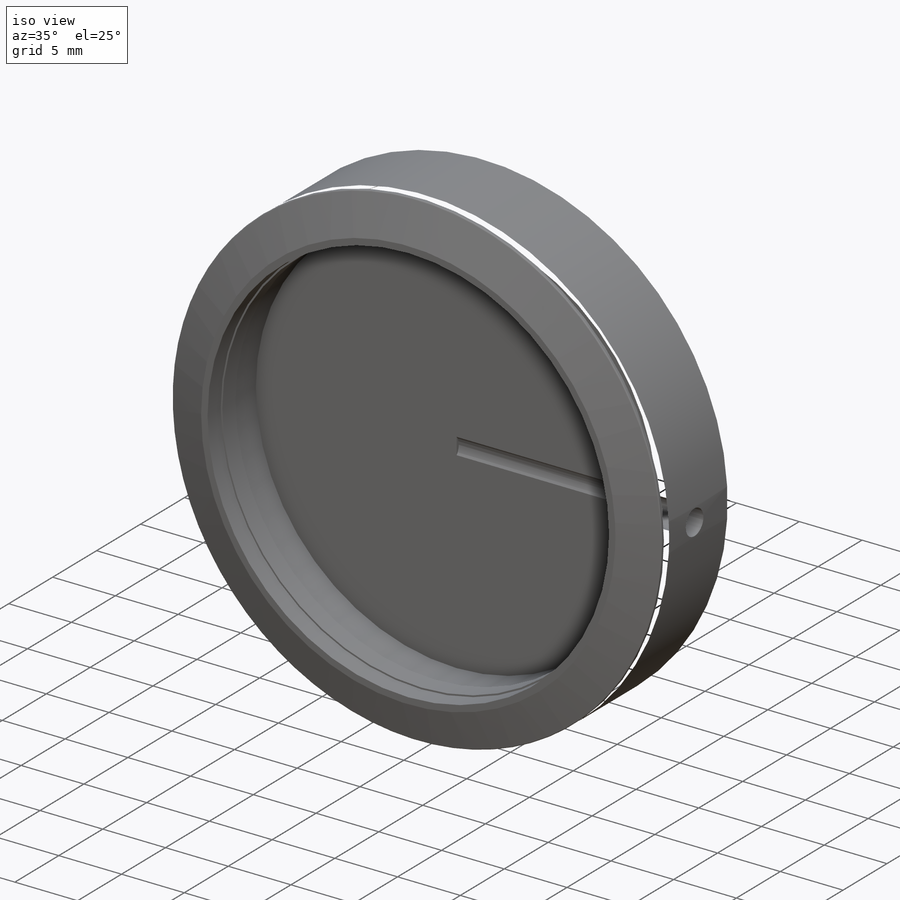
[diagram: iso view]
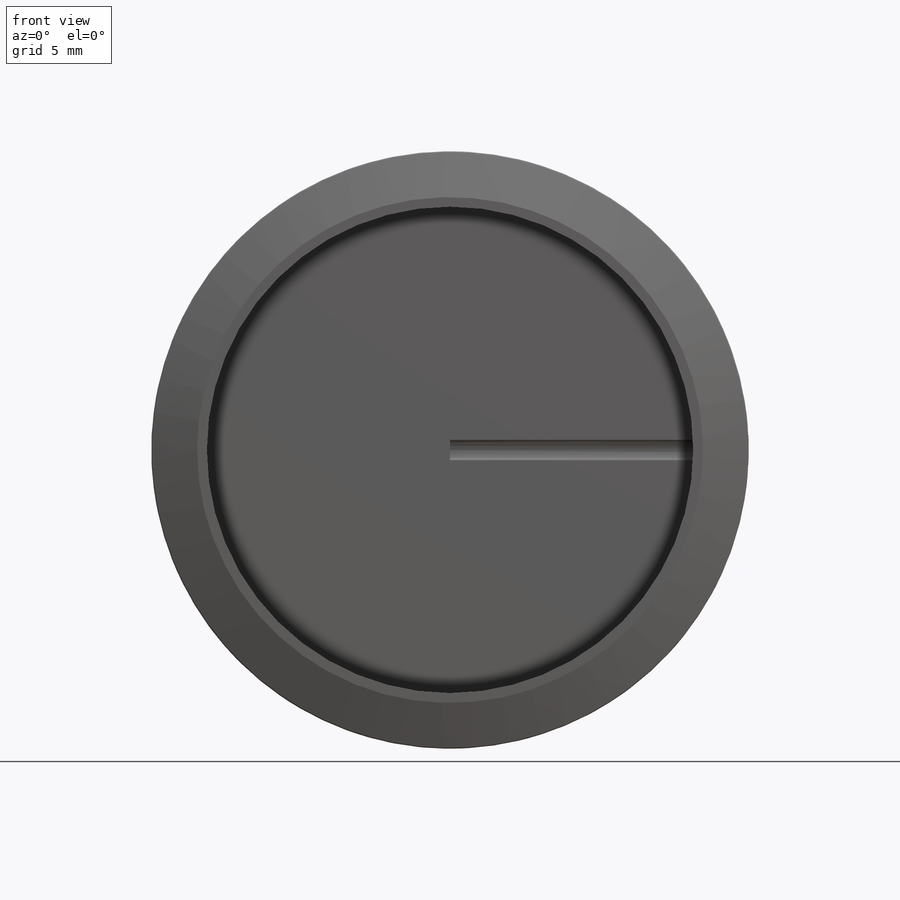
[diagram: front view]
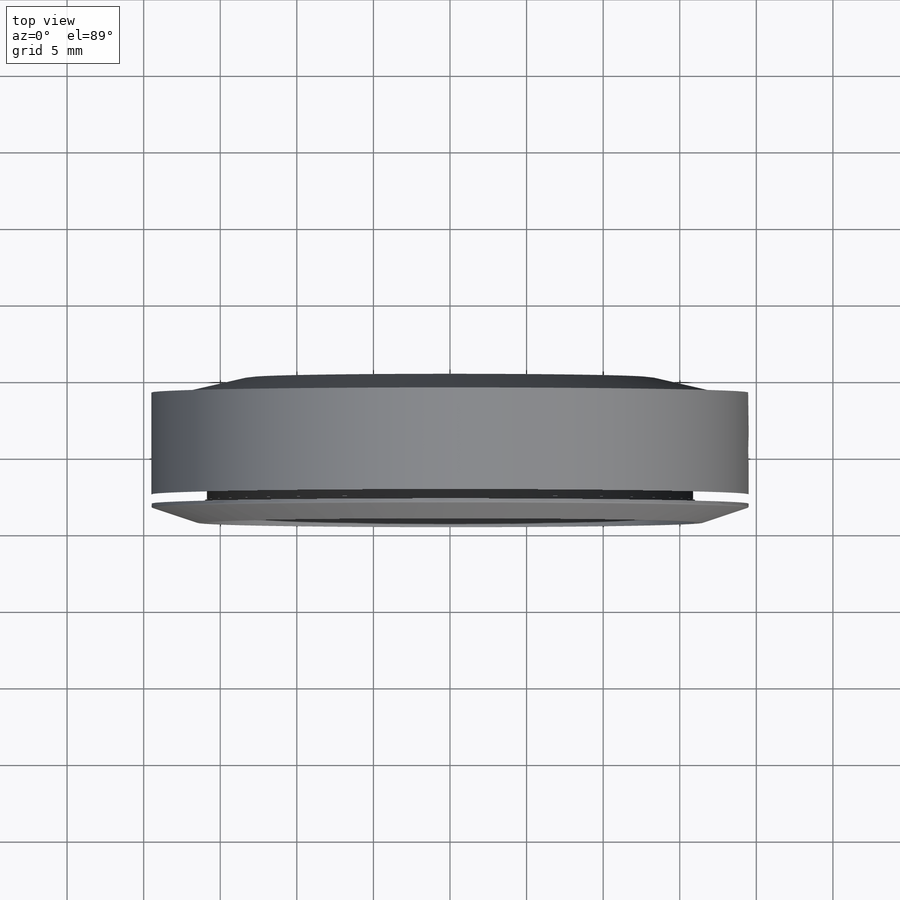
[diagram: top view]
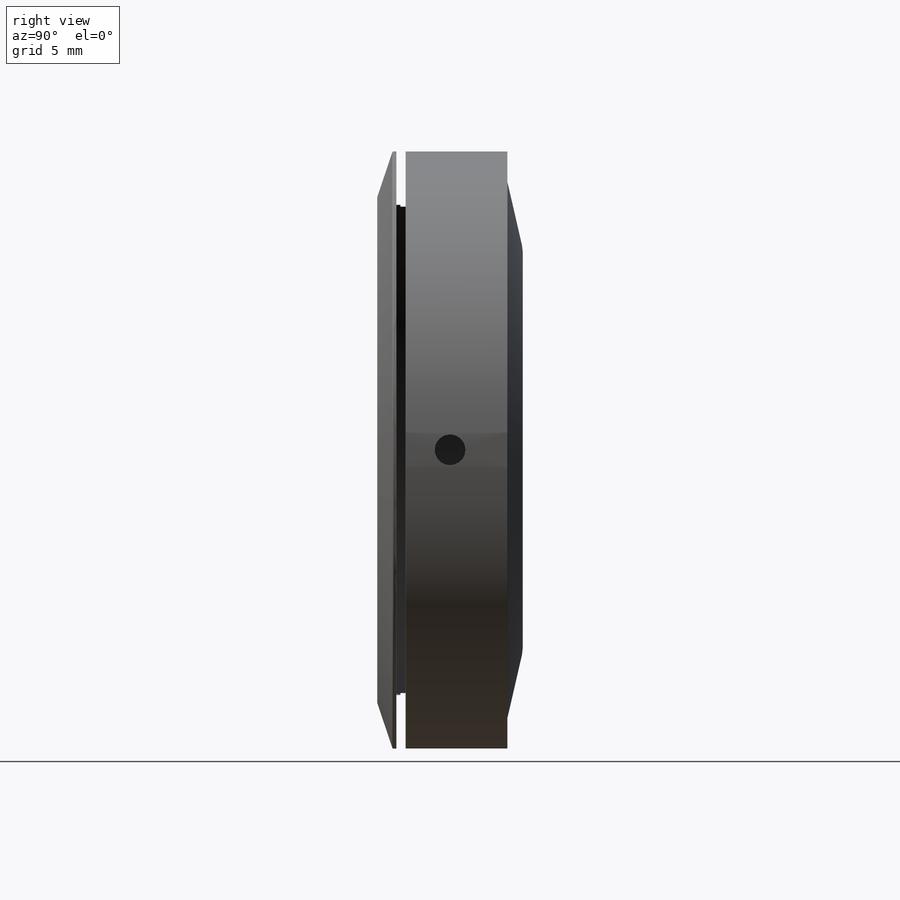
[diagram: right view]
SOLIDWORKS PART (.sldprt)
format: sldprt  version: not decoded by parser v0  size: 2,107,392 bytes
history: native  units: mm
features: sketch x15, cut_extrude x10, chamfer x3, fillet x3, extrude x2, material x1 (+11 scaffold rows collapsed)
feature tree (45):
  scaffold x11  (default folders/planes/origin — collapsed)
  material  "Material <not specified>"
  sketch  "Sketch1"  dims[c1.D1=32.0mm c1.D2=39.0mm c2.D1=32.0mm]
  extrude  "Boss-Extrude1"  Depth=9.5mm
  sketch  "Sketch2"  dims[D1=32.0mm]
  cut_extrude  "Cut-Extrude1"  Depth=1.5mm
  sketch  "Sketch3"  dims[D1=31.75mm]
  cut_extrude  "Cut-Extrude2"  Depth=2mm
  sketch  "Sketch4"  dims[D1=32.0mm]
  cut_extrude  "Cut-Extrude3"  Depth=2mm
  chamfer  "Chamfer1"  Distance=1mm Angle=71.5deg
  fillet  "Fillet1"  Radius=0.1mm
  sketch  "Sketch5"  dims[D1=35.0mm]
  cut_extrude  "Cut-Extrude4"  Depth=1.25mm
  chamfer  "Chamfer2"  Distance=1mm Angle=77deg
  fillet  "Fillet2"  Radius=0.1mm
  fillet  "Fillet3"  Radius=2mm
  sketch  "Sketch6"  dims[D2=2.0mm D1=4.75mm]
  cut_extrude  "Cut-Extrude5"  Depth=41mm
  sketch  "Sketch7"
  extrude  "Boss-Extrude2"  Depth=0.25mm
  sketch  "Sketch8"
  cut_extrude  "Cut-Extrude6"  Depth=0.1mm
  sketch  "Sketch10"  dims[D1=21.0mm D2=7.0mm D3=3.5mm]
  sketch  "Sketch9"
  cut_extrude  "Cut-Extrude7"  Depth=0.1mm
  sketch  "Sketch11"  dims[D1=38.5mm]
  cut_extrude  "Cut-Extrude8"  Depth=0.1mm
  chamfer  "Chamfer3"  Distance=0.25mm Angle=45deg
  sketch  "Sketch14"  dims[D1=14.0mm]
  sketch  "Sketch15"  dims[D1=19.5mm]
  sketch  "Sketch12"
  sketch  "Sketch13"
  cut_extrude  "Cut-Extrude9"  Depth=0.1mm
  cut_extrude  "Cut-Extrude10"  Depth=0.1mm
decode coverage: 28 of 33 modeling features carry decoded parameters
note: suppression state not decoded; provenance and decode notes live in map.json
